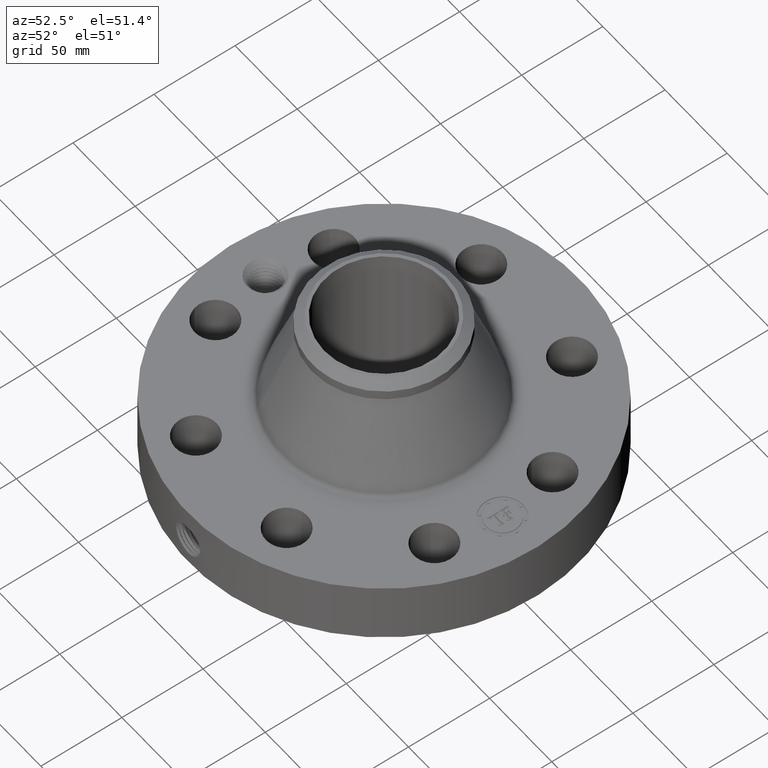
[diagram: clean part render]
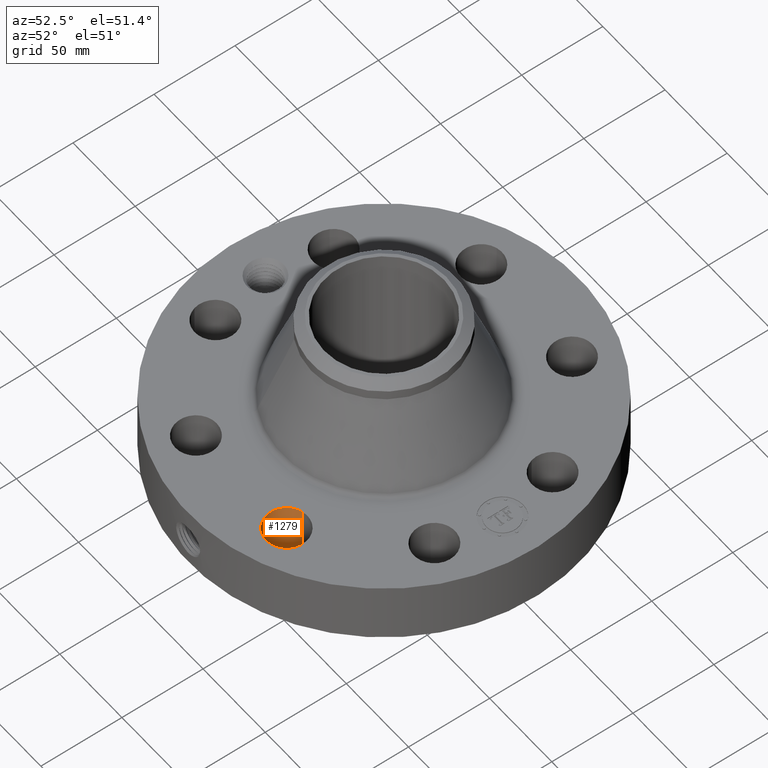
[diagram: same view with one face highlighted and labeled with its STEP entity id]
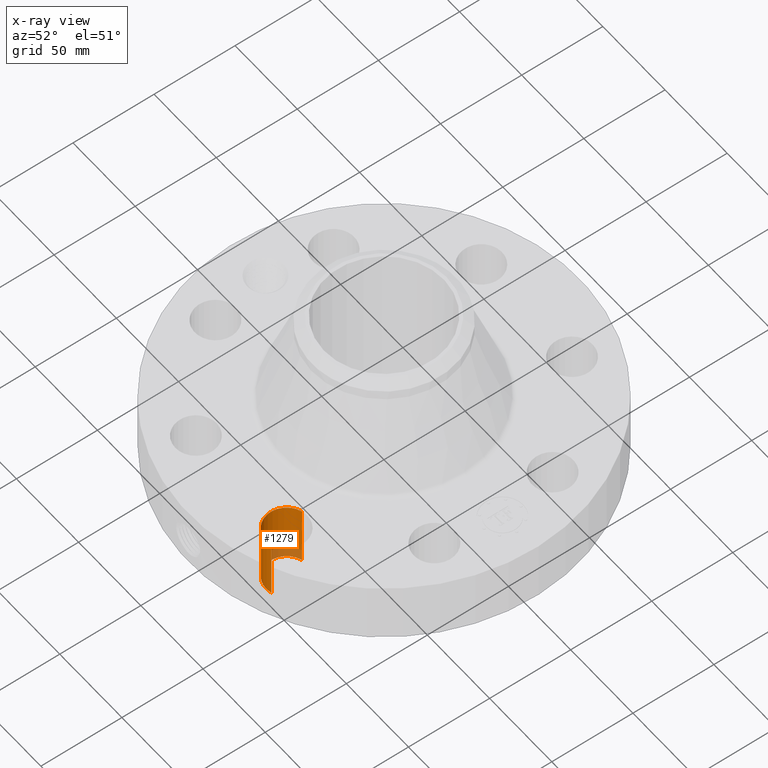
[diagram: x-ray of the same camera — body ghosted, the highlighted face saturated]
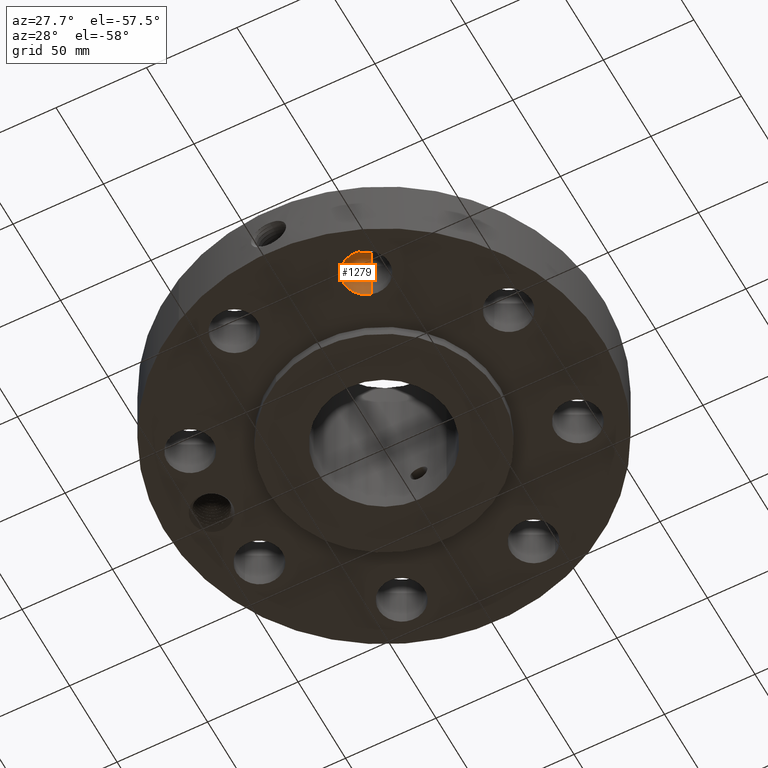
[diagram: same view with one face highlighted and labeled with its STEP entity id]
A machine part, auxiliary view. The second image highlights one B-rep face of the part: STEP entity #1279.
The next image is the same camera in x-ray: the body ghosted, the highlighted face saturated — about 12% of this face is hidden behind the body in this view.
A second angle (auxiliary view) of the same face is appended — the face is thin or edge-on in the first view.
In plain terms, the highlighted cylindrical surface (edge-blend (fillet) strip) has radius 12.7 mm, axis along (0, -0, -1).
Its self-contained STEP definition (entity closure, byte-faithful):
#257=AXIS2_PLACEMENT_3D('Circle Axis2P3D',#255,#256,$) ;
#553=AXIS2_PLACEMENT_3D('Circle Axis2P3D',#551,#552,$) ;
#1254=AXIS2_PLACEMENT_3D('Cylinder Axis2P3D',#1251,#1252,#1253) ;
#250=CARTESIAN_POINT('Vertex',(1.2942931058,-2.98477343194,0.250000000001)) ;
#252=CARTESIAN_POINT('Vertex',(1.57583263695,-3.94432306193,0.250000000001)) ;
#255=CARTESIAN_POINT('Axis2P3D Location',(1.43506287137,-3.46454824693,0.250000000001)) ;
#551=CARTESIAN_POINT('Axis2P3D Location',(1.43506287137,-3.46454824693,1.75000000001)) ;
#555=CARTESIAN_POINT('Vertex',(1.57583263695,-3.94432306193,1.75000000001)) ;
#557=CARTESIAN_POINT('Vertex',(1.2942931058,-2.98477343194,1.75000000001)) ;
#1251=CARTESIAN_POINT('Axis2P3D Location',(1.43506287137,-3.46454824693,1.74606299213)) ;
#1256=CARTESIAN_POINT('Line Origine',(1.2942931058,-2.98477343194,1.)) ;
#1261=CARTESIAN_POINT('Line Origine',(1.57583263695,-3.94432306193,1.)) ;
#256=DIRECTION('Axis2P3D Direction',(0.,0.,-0.0393700787402)) ;
#552=DIRECTION('Axis2P3D Direction',(0.,0.,-0.0393700787402)) ;
#1252=DIRECTION('Axis2P3D Direction',(0.,-0.,-0.0393700787402)) ;
#1253=DIRECTION('Axis2P3D XDirection',(0.0110842335096,-0.0377775444876,0.)) ;
#1257=DIRECTION('Vector Direction',(0.,0.,-0.0393700787402)) ;
#1262=DIRECTION('Vector Direction',(0.,0.,-0.0393700787402)) ;
#1258=VECTOR('Line Direction',#1257,0.0393700787402) ;
#1263=VECTOR('Line Direction',#1262,0.0393700787402) ;
#1274=ORIENTED_EDGE('',*,*,#1265,.F.) ;
#1275=ORIENTED_EDGE('',*,*,#259,.T.) ;
#1276=ORIENTED_EDGE('',*,*,#1260,.T.) ;
#1277=ORIENTED_EDGE('',*,*,#559,.F.) ;
#1279=ADVANCED_FACE('PartBody',(#1278),#1255,.F.) ;
#258=CIRCLE('generated circle',#257,0.500000000002) ;
#554=CIRCLE('generated circle',#553,0.500000000002) ;
#1255=CYLINDRICAL_SURFACE('generated cylinder',#1254,0.500000000002) ;
#259=EDGE_CURVE('',#253,#251,#258,.T.) ;
#559=EDGE_CURVE('',#556,#558,#554,.T.) ;
#1260=EDGE_CURVE('',#251,#558,#1259,.F.) ;
#1265=EDGE_CURVE('',#253,#556,#1264,.F.) ;
#1273=EDGE_LOOP('',(#1274,#1275,#1276,#1277)) ;
#1278=FACE_OUTER_BOUND('',#1273,.T.) ;
#1259=LINE('Line',#1256,#1258) ;
#1264=LINE('Line',#1261,#1263) ;
#251=VERTEX_POINT('',#250) ;
#253=VERTEX_POINT('',#252) ;
#556=VERTEX_POINT('',#555) ;
#558=VERTEX_POINT('',#557) ;